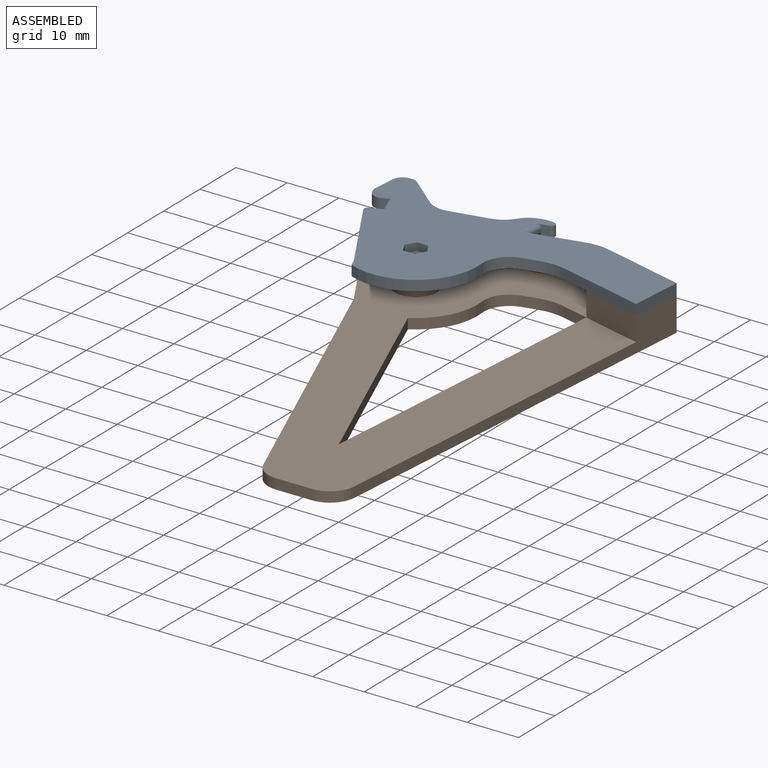
[diagram: assembled view]
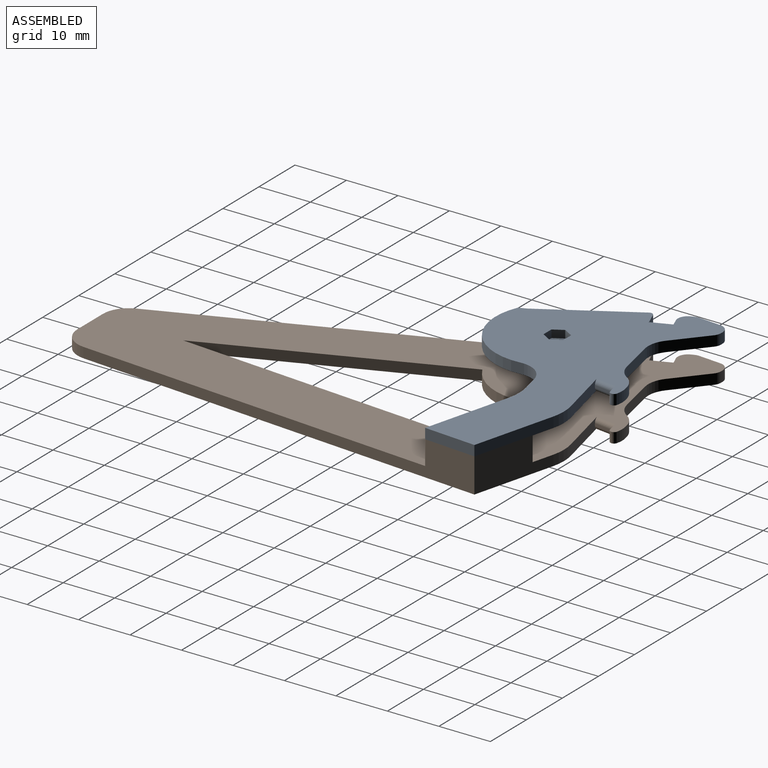
[diagram: assembled view, second angle]
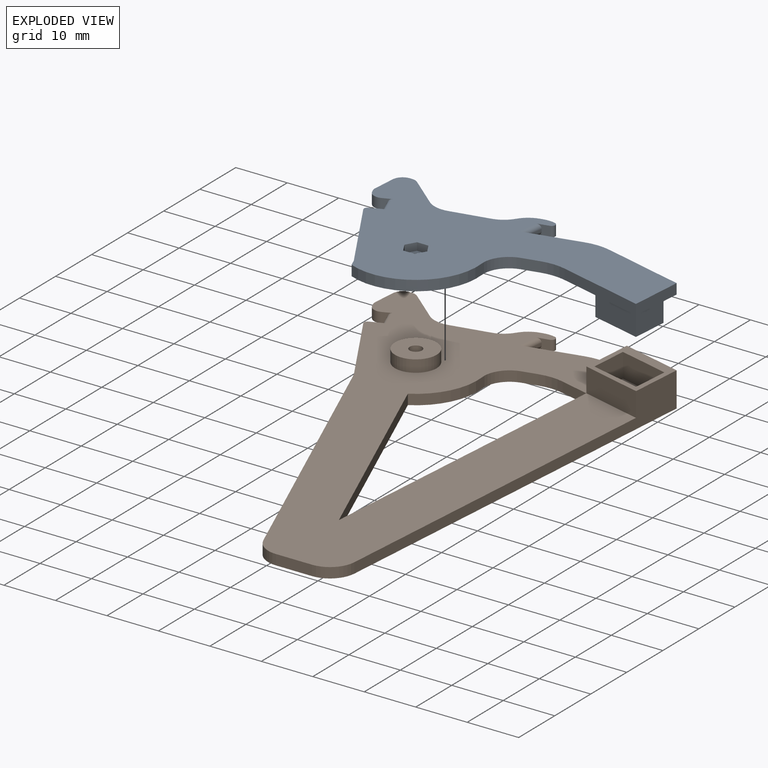
[diagram: exploded view]
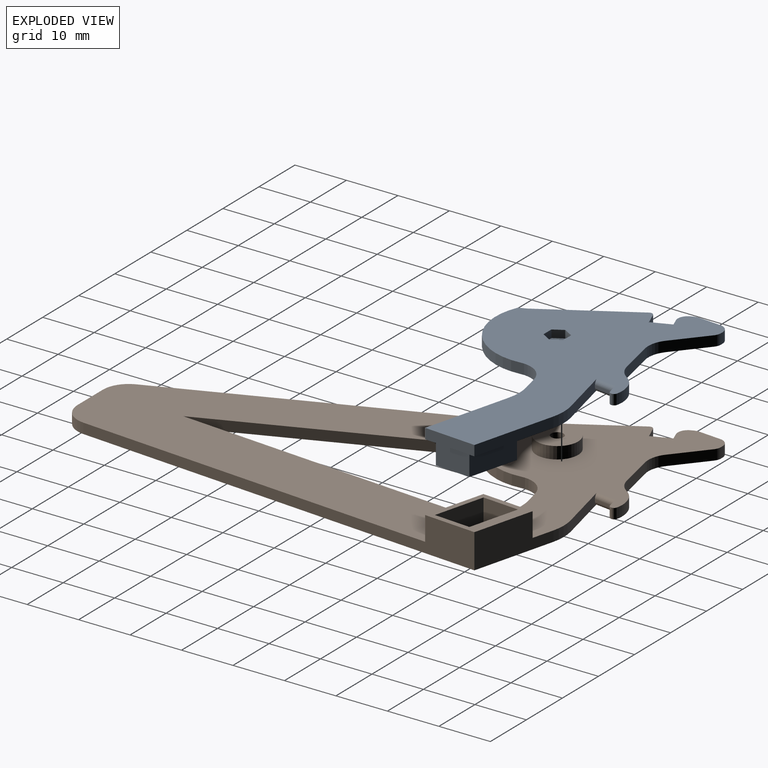
[diagram: exploded view, second angle]
ASSEMBLY  parts=2 mates=3
PART A: 58 faces, bbox 59.8x33x6.6 mm
  f0: plane 59.8x33mm, normal (0,0,-1), area 940.5mm2, adj f4,f5,f6,f7,f8,f9,f10,f12
  f1: cylinder r=1.2mm len=2.85mm, axis (0,0,-1), area 21.5mm2, adj f3,f34
  f2: cylinder r=4.05mm len=8.1mm, axis (0,0,-1), area 59.8mm2, adj f3,f20
  f3: plane 8.1x8.1mm, normal (0,0,1), area 47mm2, adj f1,f2
  f4: plane 2x1.46mm, normal (0.93,-0.37,0), area 3.1mm2, adj f0,f15,f20,f21
  f5: plane 4.34x2mm, normal (1,0.08,0), area 8.7mm2, adj f0,f20,f48,f51
  f6: plane 2x0.43mm, normal (0,1,0), area 0.9mm2, adj f0,f20,f48,f49
  f7: plane 6.08x5.09mm, normal (-0.64,0.77,0), area 15.8mm2, adj f0,f20,f46,f49
  f8: plane 7.37x2mm, normal (0.21,0.98,0), area 15.1mm2, adj f0,f20,f46,f47
  f9: plane 2x0.51mm, normal (0.21,0.98,0), area 1mm2, adj f0,f20,f52,f53
  f10: plane 2.23x2mm, normal (-0.23,-0.97,0), area 3.2mm2, adj f0,f11,f20,f44,f55,f57
  f11: plane 3.96x0.56mm, normal (-0.99,-0.14,0), area 1.6mm2, adj f10,f12,f55,f57
  f12: plane 10.89x2.57mm, normal (0.23,0.97,0), area 20.9mm2, adj f0,f11,f20,f42,f55,f57
  f13: plane 15.99x4.14mm, normal (-0.25,0.97,0), area 33mm2, adj f0,f14,f20,f42
  f14: plane 10.12x2mm, normal (-1,-0.08,0), area 20.3mm2, adj f0,f13,f20,f23
  f15: plane 16.72x9.86mm, normal (0.86,-0.51,0), area 38.8mm2, adj f0,f4,f20,f45
  f16: plane 2.77x2mm, normal (0.37,0.93,0), area 4.6mm2, adj f0,f17,f20,f45,f54,f56
  f17: plane 3.71x1.5mm, normal (0.93,-0.37,0), area 1.6mm2, adj f16,f18,f54,f56
  f18: plane 2x1.67mm, normal (-0.37,-0.93,0), area 2.3mm2, adj f0,f17,f20,f50,f54,f56
  f19: plane 2x0.49mm, normal (0.93,-0.37,0), area 1mm2, adj f0,f20,f50,f51
  f20: plane 59.8x33mm, normal (0,0,1), area 834mm2, adj f2,f4,f5,f6,f7,f8,f9,f10
  f21: cylinder r=12mm len=16.77mm, axis (0,0,1), area 49.9mm2, adj f0,f4,f20,f43
  f22: plane 3.3x2mm, normal (-0.23,-0.97,0), area 6.8mm2, adj f0,f20,f41,f43
  f23: plane 16.92x4.38mm, normal (0.25,-0.97,0), area 35mm2, adj f0,f14,f20,f41
  f24: plane 9.63x4.6mm, normal (0.25,-0.97,0), area 45.8mm2, adj f20,f25,f31,f32
  f25: plane 6.88x4.6mm, normal (1,0.08,0), area 31.8mm2, adj f20,f24,f26,f32
  f26: plane 9.63x4.6mm, normal (-0.25,0.97,0), area 45.8mm2, adj f20,f25,f31,f32
  f27: plane 4.86x4.6mm, normal (1,0.08,0), area 22.4mm2, adj f28,f30,f32,f33
  f28: plane 7.67x4.6mm, normal (0.25,-0.97,0), area 36.4mm2, adj f27,f29,f32,f33
  f29: plane 4.86x4.6mm, normal (-1,-0.08,0), area 22.4mm2, adj f28,f30,f32,f33
  f30: plane 7.67x4.6mm, normal (-0.25,0.97,0), area 36.4mm2, adj f27,f29,f32,f33
  f31: plane 6.88x4.6mm, normal (-1,-0.08,0), area 31.8mm2, adj f20,f24,f26,f32
  f32: plane 10.18x9.38mm, normal (0,0,1), area 29.7mm2, adj f24,f25,f26,f27,f28,f29,f30,f31
  f33: plane 8.05x6.84mm, normal (0,0,1), area 38mm2, adj f27,f28,f29,f30
  f34: plane 4.42x3.83mm, normal (0,0,-1), area 8.2mm2, adj f1,f35,f36,f37,f38,f39,f40
  f35: plane 1.92x1.5mm, normal (-0.87,-0.5,0), area 3.3mm2, adj f0,f34,f36,f40
  f36: plane 1.92x1.5mm, normal (-0.87,0.5,0), area 3.3mm2, adj f0,f34,f35,f37
  f37: plane 2.21x1.5mm, normal (0,1,0), area 3.3mm2, adj f0,f34,f36,f38
  f38: plane 1.92x1.5mm, normal (0.87,0.5,0), area 3.3mm2, adj f0,f34,f37,f39
  f39: plane 1.92x1.5mm, normal (0.87,-0.5,0), area 3.3mm2, adj f0,f34,f38,f40
  f40: plane 2.21x1.5mm, normal (0,-1,0), area 3.3mm2, adj f0,f34,f35,f39
  f41: cylinder r=10mm len=4.76mm, axis (0,0,-1), area 9.6mm2, adj f0,f20,f22,f23
  f42: cylinder r=10mm len=4.8mm, axis (0,0,1), area 9.7mm2, adj f0,f12,f13,f20
  f43: cylinder r=5mm len=5.37mm, axis (0,0,1), area 14.4mm2, adj f0,f20,f21,f22
  f44: cylinder r=0.7mm len=2mm, axis (0,0,-1), area 3.7mm2, adj f0,f10,f20,f53
  f45: cylinder r=0.7mm len=2mm, axis (0,0,-1), area 2.4mm2, adj f0,f15,f16,f20
  f46: cylinder r=5mm len=4.26mm, axis (0,0,-1), area 9.1mm2, adj f0,f7,f8,f20
  f47: cylinder r=5mm len=3.18mm, axis (0,0,1), area 8mm2, adj f0,f8,f20,f52
  f48: cylinder r=2mm len=2mm, axis (0,0,1), area 6mm2, adj f0,f5,f6,f20
  f49: cylinder r=2mm len=2mm, axis (0,0,1), area 2.8mm2, adj f0,f6,f7,f20
  f50: cylinder r=2mm len=2.6mm, axis (0,0,1), area 6.3mm2, adj f0,f18,f19,f20
  f51: cylinder r=2mm len=2mm, axis (0,0,-1), area 1.9mm2, adj f0,f5,f19,f20
  f52: cylinder r=5mm len=3.18mm, axis (0,0,1), area 8mm2, adj f0,f9,f20,f47
  f53: cylinder r=5mm len=2.29mm, axis (0,0,1), area 4.6mm2, adj f0,f9,f20,f44
  f54: cylinder r=0.8mm len=4.01mm, axis (0.37,0.93,0), area 5mm2, adj f16,f17,f18,f20
  f55: cylinder r=0.8mm len=4.38mm, axis (0.14,-0.99,0), area 5mm2, adj f10,f11,f12,f20
  f56: cylinder r=0.8mm len=4.01mm, axis (-0.37,-0.93,0), area 5mm2, adj f0,f16,f17,f18
  f57: cylinder r=0.8mm len=4.38mm, axis (-0.14,0.99,0), area 5mm2, adj f0,f10,f11,f12
PART B: 54 faces, bbox 59.8x93x6.7 mm
  f0: plane 4.34x2mm, normal (-1,0.08,0), area 8.7mm2, adj f17,f18,f44,f47
  f1: plane 2x0.49mm, normal (-0.93,-0.37,0), area 1mm2, adj f17,f18,f44,f45
  f2: plane 2x1.67mm, normal (0.37,-0.93,0), area 2.3mm2, adj f3,f17,f18,f45,f51,f53
  f3: plane 3.71x1.5mm, normal (-0.93,-0.37,0), area 1.6mm2, adj f2,f4,f51,f53
  f4: plane 2.77x2mm, normal (-0.37,0.93,0), area 4.6mm2, adj f3,f17,f18,f40,f51,f53
  f5: plane 16.72x9.86mm, normal (-0.86,-0.51,0), area 38.8mm2, adj f6,f17,f18,f40
  f6: plane 59.32x23.97mm, normal (-0.93,-0.37,0), area 128mm2, adj f5,f17,f18,f35
  f7: plane 7.01x2mm, normal (0,-1,0), area 14mm2, adj f17,f18,f35,f36
  f8: plane 80.39x6.7mm, normal (1,-0.08,0), area 209mm2, adj f9,f17,f18,f25,f30,f36
  f9: plane 15.99x6.7mm, normal (0.25,0.97,0), area 90.3mm2, adj f8,f17,f18,f24,f30,f38
  f10: plane 10.89x2.57mm, normal (-0.23,0.97,0), area 20.9mm2, adj f11,f17,f18,f38,f50,f52
  f11: plane 3.96x0.56mm, normal (0.99,-0.14,0), area 1.6mm2, adj f10,f12,f50,f52
  f12: plane 2.23x2mm, normal (0.23,-0.97,0), area 3.2mm2, adj f11,f17,f18,f41,f50,f52
  f13: plane 2x0.51mm, normal (-0.21,0.98,0), area 1mm2, adj f17,f18,f48,f49
  f14: plane 7.37x2mm, normal (-0.21,0.98,0), area 15.1mm2, adj f17,f18,f42,f43
  f15: plane 6.08x5.09mm, normal (0.64,0.77,0), area 15.8mm2, adj f17,f18,f43,f46
  f16: plane 2x0.43mm, normal (0,1,0), area 0.9mm2, adj f17,f18,f46,f47
  f17: plane 93x59.8mm, normal (0,0,-1), area 2448.2mm2, adj f0,f1,f2,f4,f5,f6,f7,f8
  f18: plane 93x59mm, normal (0,0,1), area 2279.3mm2, adj f0,f1,f2,f4,f5,f6,f7,f8
  f19: plane 5.59x2mm, normal (-0.25,-0.97,0), area 11.5mm2, adj f17,f18,f23,f37
  f20: plane 2.84x2mm, normal (0.23,-0.97,0), area 5.8mm2, adj f17,f18,f37,f39
  f21: cylinder r=12mm len=11.84mm, axis (0,0,1), area 28.3mm2, adj f17,f18,f22,f39
  f22: plane 45.3x18.3mm, normal (0.93,0.37,0), area 97.7mm2, adj f17,f18,f21,f23
  f23: plane 61.73x4.87mm, normal (-1,0.08,0), area 123.8mm2, adj f17,f18,f19,f22
  f24: plane 10.12x4.7mm, normal (-1,0.08,0), area 47.7mm2, adj f9,f18,f25,f30
  f25: plane 11.8x4.7mm, normal (-0.25,-0.97,0), area 57.3mm2, adj f8,f18,f24,f30
  f26: plane 7.09x4.7mm, normal (-1,0.08,0), area 33.4mm2, adj f27,f29,f30,f31
  f27: plane 9.83x4.7mm, normal (0.25,0.97,0), area 47.7mm2, adj f26,f28,f30,f31
  f28: plane 7.09x4.7mm, normal (1,-0.08,0), area 33.4mm2, adj f27,f29,f30,f31
  f29: plane 9.83x4.7mm, normal (-0.25,-0.97,0), area 47.7mm2, adj f26,f28,f30,f31
  f30: plane 13.18x12.59mm, normal (0,0,1), area 50.8mm2, adj f8,f9,f24,f25,f26,f27,f28,f29
  f31: plane 10.39x9.63mm, normal (0,0,1), area 71.1mm2, adj f26,f27,f28,f29
  f32: cylinder r=4.05mm len=8.1mm, axis (0,0,-1), area 59.8mm2, adj f18,f33
  f33: plane 8.1x8.1mm, normal (0,0,1), area 47mm2, adj f32,f34
  f34: cylinder r=1.2mm len=4.35mm, axis (0,0,1), area 32.8mm2, adj f17,f33
  f35: cylinder r=5mm len=4.64mm, axis (0,0,1), area 11.9mm2, adj f6,f7,f17,f18
  f36: cylinder r=5mm len=4.98mm, axis (0,0,1), area 14.9mm2, adj f7,f8,f17,f18
  f37: cylinder r=10mm len=4.8mm, axis (0,0,-1), area 9.7mm2, adj f17,f18,f19,f20
  f38: cylinder r=10mm len=4.8mm, axis (0,0,1), area 9.7mm2, adj f9,f10,f17,f18
  f39: cylinder r=5mm len=5.42mm, axis (0,0,1), area 14.5mm2, adj f17,f18,f20,f21
  f40: cylinder r=0.7mm len=2mm, axis (0,0,-1), area 2.4mm2, adj f4,f5,f17,f18
  f41: cylinder r=0.7mm len=2mm, axis (0,0,-1), area 3.7mm2, adj f12,f17,f18,f49
  f42: cylinder r=5mm len=3.18mm, axis (0,0,-1), area 8mm2, adj f14,f17,f18,f48
  f43: cylinder r=5mm len=4.26mm, axis (0,0,-1), area 9.1mm2, adj f14,f15,f17,f18
  f44: cylinder r=2mm len=2mm, axis (0,0,-1), area 1.9mm2, adj f0,f1,f17,f18
  f45: cylinder r=2mm len=2.6mm, axis (0,0,1), area 6.3mm2, adj f1,f2,f17,f18
  f46: cylinder r=2mm len=2mm, axis (0,0,1), area 2.8mm2, adj f15,f16,f17,f18
  f47: cylinder r=2mm len=2mm, axis (0,0,1), area 6mm2, adj f0,f16,f17,f18
  f48: cylinder r=5mm len=3.18mm, axis (0,0,-1), area 8mm2, adj f13,f17,f18,f42
  f49: cylinder r=5mm len=2.29mm, axis (0,0,1), area 4.6mm2, adj f13,f17,f18,f41
  f50: cylinder r=0.8mm len=4.38mm, axis (0.14,0.99,0), area 5mm2, adj f10,f11,f12,f18
  f51: cylinder r=0.8mm len=4.01mm, axis (0.37,-0.93,0), area 5mm2, adj f2,f3,f4,f18
  f52: cylinder r=0.8mm len=4.38mm, axis (-0.14,-0.99,0), area 5mm2, adj f10,f11,f12,f17
  f53: cylinder r=0.8mm len=4.01mm, axis (-0.37,0.93,0), area 5mm2, adj f2,f3,f4,f17
PLACE A rot(axis=(0,1,0),180deg) t=(100,0,4.7)mm
PLACE B at identity fixed
MATE cylindrical A.f21 <-> B.f32  axis (0,0,-1) through (0,0,4.7)mm
MATE planar A.f13 <-> B.f9  axis (0.25,0.97,0) through (33.58,15.07,5.7)mm
MATE planar A.f21 <-> B.f32  axis (0,0,-1) through (0,0,2.35)mm
